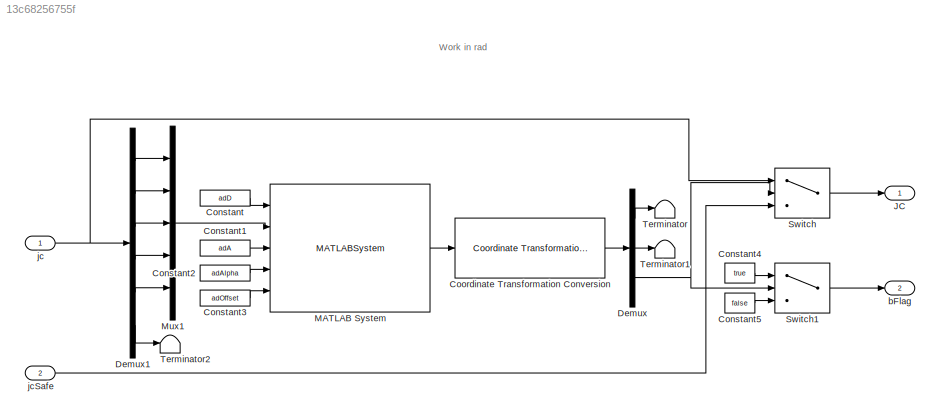
MODEL slx_13c68256755f
KIND model
CONFIG AbsTol = auto
CONFIG EnableMultiTasking = on
CONFIG FixedStep = auto
CONFIG MaxStep = auto
CONFIG MinStep = auto
CONFIG RelTol = 1e-3
CONFIG SampleTimeConstraint = Unconstrained
CONFIG SolverName = FixedStepAuto
CONFIG StartTime = 0.0
CONFIG StopTime = inf
BLOCK [Constant] Constant
  Value = adD
BLOCK [Constant] Constant1
  Value = adA
BLOCK [Constant] Constant2
  Value = adAlpha
BLOCK [Constant] Constant3
  Value = adOffset
BLOCK [Constant] Constant4
  Value = true
BLOCK [Constant] Constant5
  Value = false
BLOCK [Reference] Coordinate Transformation Conversion  REF=robotcorelib/Coordinate Transformation Conversion
  Ports = [1, 1]
  SourceBlock = robotcorelib/Coordinate Transformation Conversion
  SourceProductBaseCode = NV,RO,RR,UV
  SourceType = robotics.slcore.internal.block.CoordinateTransformationConversion
BLOCK [Demux] Demux
  Outputs = 3
  Ports = [1, 3]
BLOCK [Demux] Demux1
  Outputs = 6
  Ports = [1, 6]
BLOCK [Outport] JC
BLOCK [MATLABSystem] MATLAB System
  MaskDisplay = disp('oKINSolver');\nport_label('input',1,'adD');\nport_label('input',2,'adQ');\nport_label('input',3,'adA');\nport_label('input',4,'adAlpha');\nport_label('input',5,'adOffset');\nport_label('output',1,'adPoint');
  MaskType = oKINSolver
  Ports = [5, 1]
  SimulateUsing = Code generation
  System = oKINSolver
  adBaseMinMaxDeg = adMotorLimits(1,:)
  adElbowMinMaxDeg = adMotorLimits(3,:)
  adHomeDeg = adHome6deg
  adPitchMinMaxDeg = adMotorLimits(4,:)
  adRollMinMaxDeg = adMotorLimits(5,:)
  adShoulderMinMaxDeg = adMotorLimits(2,:)
  nArmLength = adLinkLenghts(2)
  nForearmLength = adLinkLenghts(3)
  nGroundLength = adLinkLenghts(1)
  nHandLength = adLinkLenghts(4)
BLOCK [Mux] Mux1
  DisplayOption = bar
  Inputs = 5
  Ports = [5, 1]
BLOCK [Switch] Switch
  Criteria = u2 > Threshold
  InputSameDT = off
  SaturateOnIntegerOverflow = off
  Threshold = 5
BLOCK [Switch] Switch1
  Criteria = u2 > Threshold
  InputSameDT = off
  SaturateOnIntegerOverflow = off
  Threshold = 5
BLOCK [Terminator] Terminator
BLOCK [Terminator] Terminator1
BLOCK [Terminator] Terminator2
BLOCK [Outport] bFlag
  Port = 2
BLOCK [Inport] jc
  PortDimensions = 6
BLOCK [Inport] jcSafe
  Port = 2
  PortDimensions = 6
ANNOTATION (root): Work in rad
LINE Constant1:1 -> MATLAB System:3
LINE Constant2:1 -> MATLAB System:4
LINE Constant3:1 -> MATLAB System:5
LINE Constant4:1 -> Switch1:1
LINE Constant5:1 -> Switch1:3
LINE Constant:1 -> MATLAB System:1
LINE Coordinate Transformation Conversion:1 -> Demux:1
LINE Demux1:1 -> Mux1:1
LINE Demux1:2 -> Mux1:2
LINE Demux1:3 -> Mux1:3
LINE Demux1:4 -> Mux1:4
LINE Demux1:5 -> Mux1:5
LINE Demux1:6 -> Terminator2:1
LINE Demux:1 -> Terminator:1
LINE Demux:2 -> Terminator1:1
NET Demux:3 -> Switch1:2, Switch:2
LINE MATLAB System:1 -> Coordinate Transformation Conversion:1
LINE Mux1:1 -> MATLAB System:2
LINE Switch1:1 -> bFlag:1
LINE Switch:1 -> JC:1
NET jc:1 -> Demux1:1, Switch:1
LINE jcSafe:1 -> Switch:3
note: NET lines group one-source signal fan-out (src -> all destinations, sorted); 1:1 wires keep LINE
